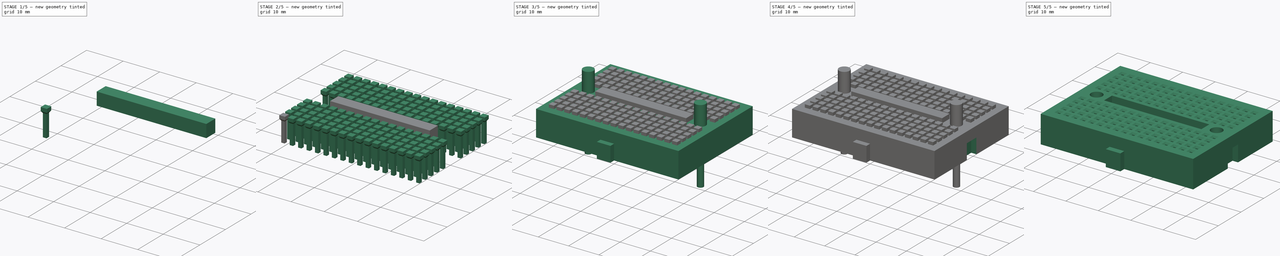
[diagram: build sequence overview — one tinted view per stage of 5, left to right]
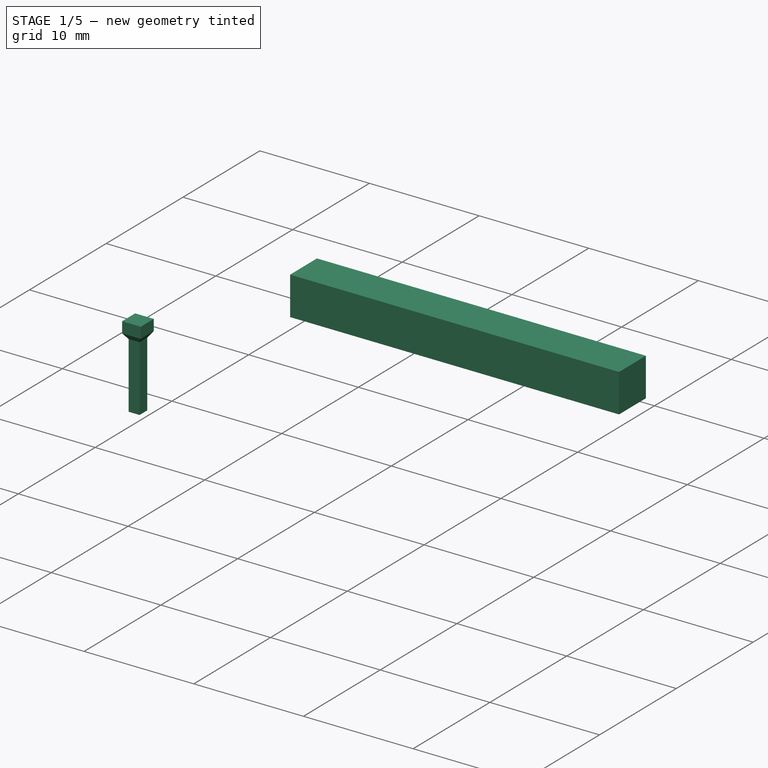
[diagram: stage 1 of 5 — iso view after this stage's code; geometry added in this stage tinted green]
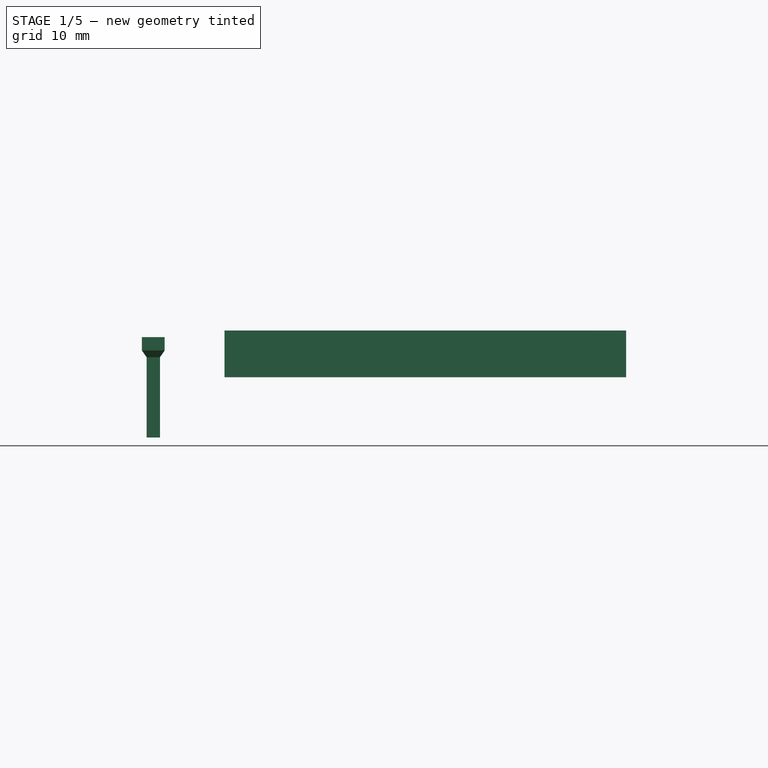
[diagram: stage 1 of 5 — front view after this stage's code; geometry added in this stage tinted green]
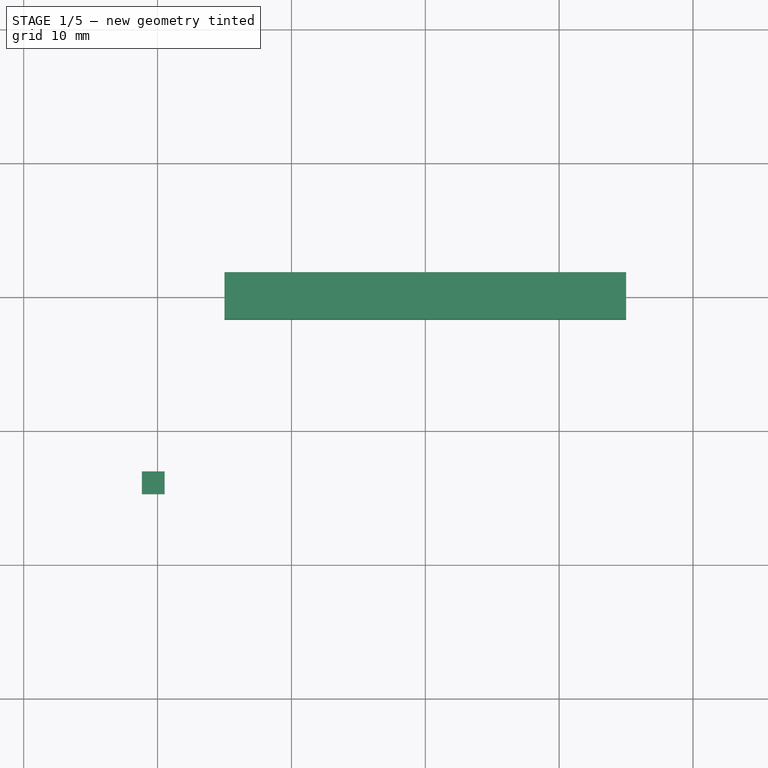
[diagram: stage 1 of 5 — top view after this stage's code; geometry added in this stage tinted green]
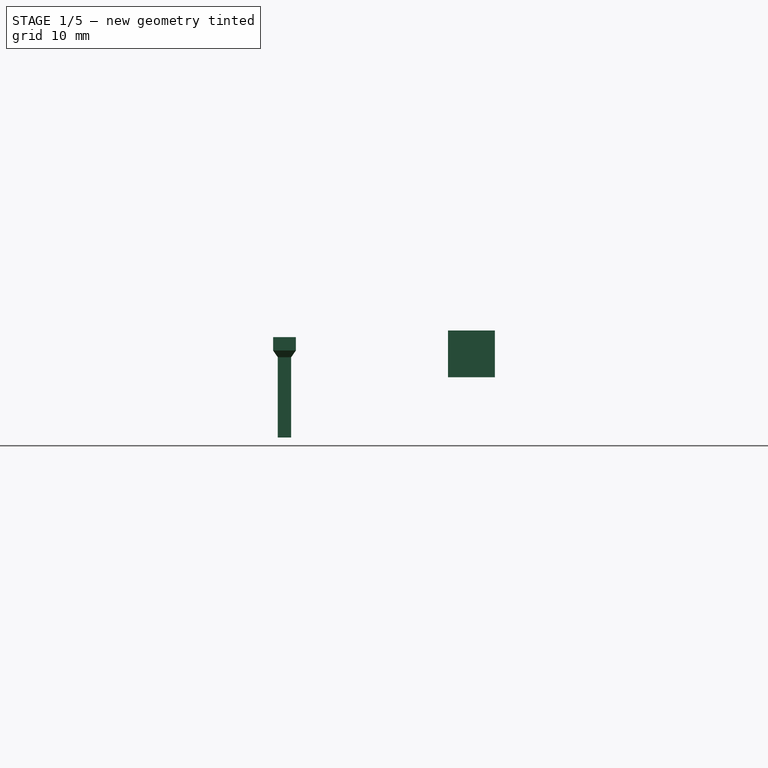
[diagram: stage 1 of 5 — right view after this stage's code; geometry added in this stage tinted green]
FCSTD DOCUMENT  (FreeCAD 0.16R6706 (Git))
Label: Mini_breadboard_170_holes
License: All rights reserved
LicenseURL: http://en.wikipedia.org/wiki/All_rights_reserved
objects: Sketcher::SketchObject×10, PartDesign::Pad×7, Part::Cut×5, Part::Fuse×3, Part::Feature×2, Part::Loft×1, Part::FeaturePython×1, Part::Mirroring×1
note: 37 computed .brp shape members not serialized (recipe doc carries the construction recipe); baked Part::Feature solids carry a one-line shape summary decoded from their .brp

FEATURE [Sketcher::SketchObject] Sketch005  label="Sketch_pin_bas"
  Placement = pos=(0,0,2) rot=(0,0,1;0rad)
  sketch-geometry (9):
    g0: LineSegment StartX=-20.82 StartY=-14.47 StartZ=0 EndX=-19.82 EndY=-14.47 EndZ=0
    g1: LineSegment StartX=-19.82 StartY=-14.47 StartZ=0 EndX=-19.82 EndY=-13.47 EndZ=0
    g2: LineSegment StartX=-19.82 StartY=-13.47 StartZ=0 EndX=-20.82 EndY=-13.47 EndZ=0
    g3: LineSegment StartX=-20.82 StartY=-13.47 StartZ=0 EndX=-20.82 EndY=-14.47 EndZ=0
    g4: LineSegment [constr] StartX=-20.32 StartY=-13.97 StartZ=0 EndX=-20.32 EndY=-14.47 EndZ=0
    g5: LineSegment [constr] StartX=-20.32 StartY=-13.97 StartZ=0 EndX=-20.32 EndY=0 EndZ=0
    g6: LineSegment [constr] StartX=-20.32 StartY=-13.97 StartZ=0 EndX=0 EndY=-13.97 EndZ=0
    g7: LineSegment [constr] StartX=-20.82 StartY=-13.97 StartZ=0 EndX=-20.32 EndY=-13.97 EndZ=0
    g8: LineSegment [constr] StartX=-20.32 StartY=-13.97 StartZ=0 EndX=-20.32 EndY=-14.47 EndZ=0
  constraints (28):
    c: Coincident(g0,g1)
    c: Coincident(g1,g2)
    c: Coincident(g2,g3)
    c: Coincident(g3,g0)
    c: Horizontal(g0)
    c: Horizontal(g2)
    c: Vertical(g1)
    c: Vertical(g3)
    c: Equal(g0,g3)
    c: Distance(g0) = 1
    c: PointOnObject(g4,g0)
    c: Vertical(g4)
    c: PointOnObject(g5,g-1)
    c: Vertical(g5)
    c: Coincident(g4,g5)
    c: Coincident(g6,g4)
    c: PointOnObject(g6,g-2)
    c: Horizontal(g6)
    c: Distance(g6) = 20.32
    c: PointOnObject(g7,g3)
    c: Horizontal(g7)
    c: Coincident(g8,g7)
    c: PointOnObject(g8,g0)
    c: Vertical(g8)
    c: Distance(g7) = 0.5
    c: Equal(g7,g8)
    c: Coincident(g7,g4)
    c: Distance(g5) = 13.97
FEATURE [Sketcher::SketchObject] Sketch006  label="Sketch_pin_milieu"
  Placement = pos=(0,0,8) rot=(0,0,1;0rad)
  sketch-geometry (8):
    g0: LineSegment StartX=-20.82 StartY=-13.47 StartZ=0 EndX=-19.82 EndY=-13.47 EndZ=0
    g1: LineSegment StartX=-19.82 StartY=-13.47 StartZ=0 EndX=-19.82 EndY=-14.47 EndZ=0
    g2: LineSegment StartX=-19.82 StartY=-14.47 StartZ=0 EndX=-20.82 EndY=-14.47 EndZ=0
    g3: LineSegment StartX=-20.82 StartY=-14.47 StartZ=0 EndX=-20.82 EndY=-13.47 EndZ=0
    g4: LineSegment [constr] StartX=-20.82 StartY=-13.97 StartZ=0 EndX=-20.32 EndY=-13.97 EndZ=0
    g5: LineSegment [constr] StartX=-20.32 StartY=-13.97 StartZ=0 EndX=-20.32 EndY=-14.47 EndZ=0
    g6: LineSegment [constr] StartX=-20.32 StartY=-13.97 StartZ=0 EndX=-20.32 EndY=0 EndZ=0
    g7: LineSegment [constr] StartX=-20.32 StartY=-13.97 StartZ=0 EndX=0 EndY=-13.97 EndZ=0
  constraints (25):
    c: Coincident(g0,g1)
    c: Coincident(g1,g2)
    c: Coincident(g2,g3)
    c: Coincident(g3,g0)
    c: Horizontal(g0)
    c: Horizontal(g2)
    c: Vertical(g1)
    c: Vertical(g3)
    c: Equal(g0,g1)
    c: Distance(g0) = 1
    c: PointOnObject(g4,g3)
    c: Coincident(g4,g5)
    c: PointOnObject(g5,g2)
    c: Vertical(g5)
    c: Horizontal(g4)
    c: Distance(g4) = 0.5
    c: Equal(g4,g5)
    c: Coincident(g6,g4)
    c: PointOnObject(g6,g-1)
    c: Vertical(g6)
    c: Distance(g6) = 13.97
    c: Coincident(g7,g4)
    c: PointOnObject(g7,g-2)
    c: Horizontal(g7)
    c: Distance(g7) = 20.32
FEATURE [Sketcher::SketchObject] Sketch007  label="Sketch_pin_surface"
  Placement = pos=(0,0,8.5) rot=(0,0,1;0rad)
  sketch-geometry (8):
    g0: LineSegment StartX=-21.17 StartY=-13.12 StartZ=0 EndX=-19.47 EndY=-13.12 EndZ=0
    g1: LineSegment StartX=-19.47 StartY=-13.12 StartZ=0 EndX=-19.47 EndY=-14.82 EndZ=0
    g2: LineSegment StartX=-19.47 StartY=-14.82 StartZ=0 EndX=-21.17 EndY=-14.82 EndZ=0
    g3: LineSegment StartX=-21.17 StartY=-14.82 StartZ=0 EndX=-21.17 EndY=-13.12 EndZ=0
    g4: LineSegment [constr] StartX=-21.17 StartY=-13.97 StartZ=0 EndX=-20.32 EndY=-13.97 EndZ=0
    g5: LineSegment [constr] StartX=-20.32 StartY=-13.97 StartZ=0 EndX=-20.32 EndY=-14.82 EndZ=0
    g6: LineSegment [constr] StartX=-20.32 StartY=-13.97 StartZ=0 EndX=-20.32 EndY=0 EndZ=0
    g7: LineSegment [constr] StartX=-20.32 StartY=-13.97 StartZ=0 EndX=0 EndY=-13.97 EndZ=0
  constraints (25):
    c: Coincident(g0,g1)
    c: Coincident(g1,g2)
    c: Coincident(g2,g3)
    c: Coincident(g3,g0)
    c: Horizontal(g0)
    c: Horizontal(g2)
    c: Vertical(g1)
    c: Vertical(g3)
    c: Distance(g0) = 1.7
    c: Equal(g0,g1)
    c: PointOnObject(g4,g3)
    c: Horizontal(g4)
    c: Coincident(g5,g4)
    c: PointOnObject(g5,g2)
    c: Vertical(g5)
    c: Equal(g4,g5)
    c: Distance(g4) = 0.85
    c: PointOnObject(g6,g-1)
    c: Vertical(g6)
    c: Coincident(g7,g4)
    c: PointOnObject(g7,g-2)
    c: Horizontal(g7)
    c: Coincident(g6,g4)
    c: Distance(g6) = 13.97
    c: Distance(g7) = 20.32
FEATURE [Part::Loft] Loft
  Closed = false
  Ruled = true
  Sections = -> [Sketch005,Sketch006,Sketch007]
  Solid = true
FEATURE [Sketcher::SketchObject] Sketch008  label="Sketch_pin_haut"
  Placement = pos=(0,0,8.5) rot=(0,0,1;0rad)
  sketch-geometry (8):
    g0: LineSegment StartX=-21.17 StartY=-13.12 StartZ=0 EndX=-19.47 EndY=-13.12 EndZ=0
    g1: LineSegment StartX=-19.47 StartY=-13.12 StartZ=0 EndX=-19.47 EndY=-14.82 EndZ=0
    g2: LineSegment StartX=-19.47 StartY=-14.82 StartZ=0 EndX=-21.17 EndY=-14.82 EndZ=0
    g3: LineSegment StartX=-21.17 StartY=-14.82 StartZ=0 EndX=-21.17 EndY=-13.12 EndZ=0
    g4: LineSegment [constr] StartX=-21.17 StartY=-13.97 StartZ=0 EndX=-20.32 EndY=-13.97 EndZ=0
    g5: LineSegment [constr] StartX=-20.32 StartY=-13.97 StartZ=0 EndX=-20.32 EndY=-14.82 EndZ=0
    g6: LineSegment [constr] StartX=-20.32 StartY=-13.97 StartZ=0 EndX=-20.32 EndY=0 EndZ=0
    g7: LineSegment [constr] StartX=-20.32 StartY=-13.97 StartZ=0 EndX=0 EndY=-13.97 EndZ=0
  constraints (25):
    c: Coincident(g0,g1)
    c: Coincident(g1,g2)
    c: Coincident(g2,g3)
    c: Coincident(g3,g0)
    c: Horizontal(g0)
    c: Horizontal(g2)
    c: Vertical(g1)
    c: Vertical(g3)
    c: Distance(g0) = 1.7
    c: Equal(g0,g1)
    c: PointOnObject(g4,g3)
    c: Horizontal(g4)
    c: Coincident(g4,g5)
    c: PointOnObject(g5,g2)
    c: Vertical(g5)
    c: Equal(g4,g5)
    c: Distance(g4) = 0.85
    c: Coincident(g6,g4)
    c: PointOnObject(g6,g-1)
    c: Vertical(g6)
    c: Coincident(g7,g4)
    c: PointOnObject(g7,g-2)
    c: Horizontal(g7)
    c: Distance(g6) = 13.97
    c: Distance(g7) = 20.32
FEATURE [PartDesign::Pad] Pad005  label="Pad_pin_haut"
  Length = 1
  Length2 = 100
  Placement = pos=(0,0,8.5) rot=(0,0,1;0rad)
  Sketch = -> Sketch008
  Type = 0
FEATURE [Part::Fuse] Fusion001  label="Fusion_pin"
  Base = -> Loft
  Tool = -> Pad005
FEATURE [Sketcher::SketchObject] Sketch009  label="Sketch_rainure"
  Placement = pos=(0,0,10) rot=(0,0,1;0rad)
  sketch-geometry (4):
    g0: LineSegment StartX=-15 StartY=1.75 StartZ=0 EndX=15 EndY=1.75 EndZ=0
    g1: LineSegment StartX=15 StartY=1.75 StartZ=0 EndX=15 EndY=-1.75 EndZ=0
    g2: LineSegment StartX=15 StartY=-1.75 StartZ=0 EndX=-15 EndY=-1.75 EndZ=0
    g3: LineSegment StartX=-15 StartY=-1.75 StartZ=0 EndX=-15 EndY=1.75 EndZ=0
  constraints (12):
    c: Coincident(g0,g1)
    c: Coincident(g1,g2)
    c: Coincident(g2,g3)
    c: Coincident(g3,g0)
    c: Horizontal(g0)
    c: Horizontal(g2)
    c: Vertical(g1)
    c: Vertical(g3)
    c: Distance(g0) = 30
    c: Distance(g3) = 3.5
    c: Symmetric(g0,g2,g-1)
    c: Symmetric(g0,g0,g-2)
FEATURE [PartDesign::Pad] Pad006  label="Pad_rainure"
  Length = 3.5
  Length2 = 100
  Placement = pos=(0,0,10) rot=(0,0,1;0rad)
  Reversed = true
  Sketch = -> Sketch009
  Type = 0
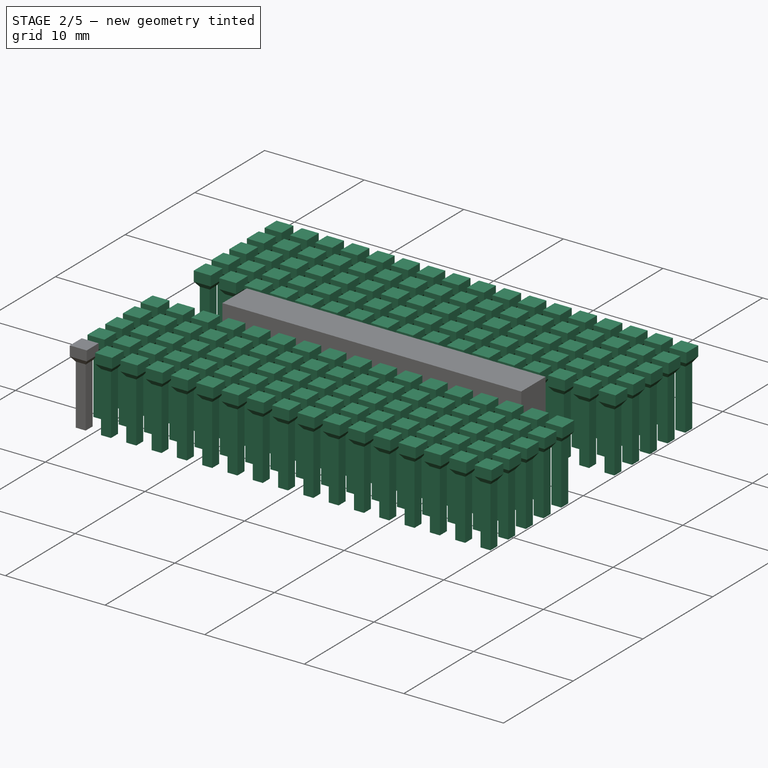
[diagram: stage 2 of 5 — iso view after this stage's code; geometry added in this stage tinted green]
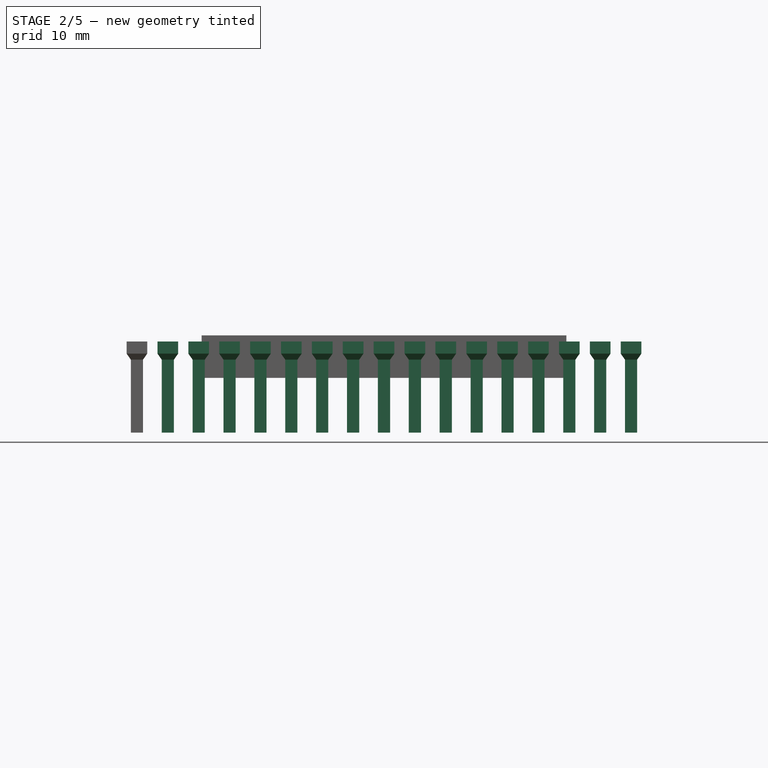
[diagram: stage 2 of 5 — front view after this stage's code; geometry added in this stage tinted green]
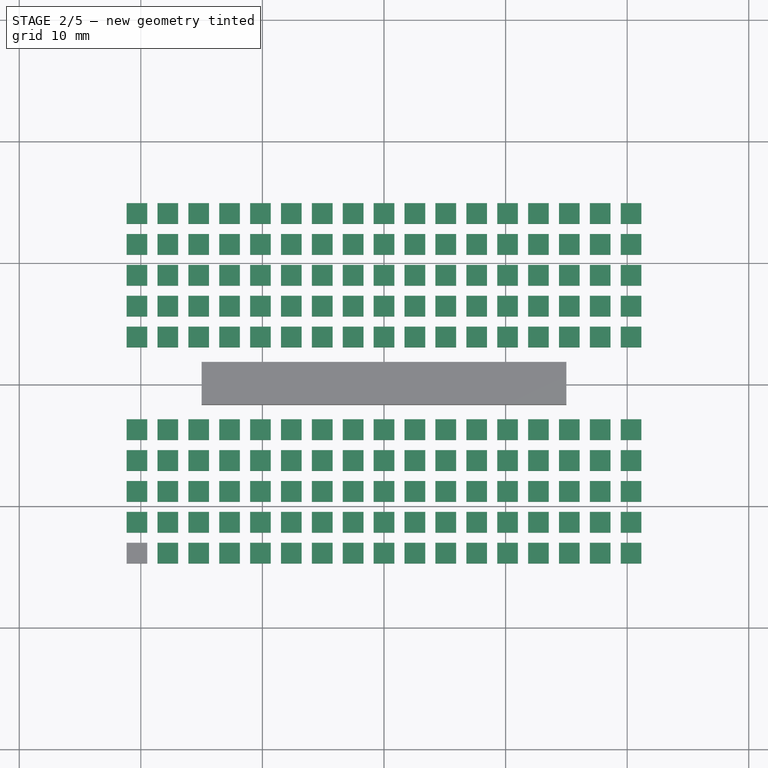
[diagram: stage 2 of 5 — top view after this stage's code; geometry added in this stage tinted green]
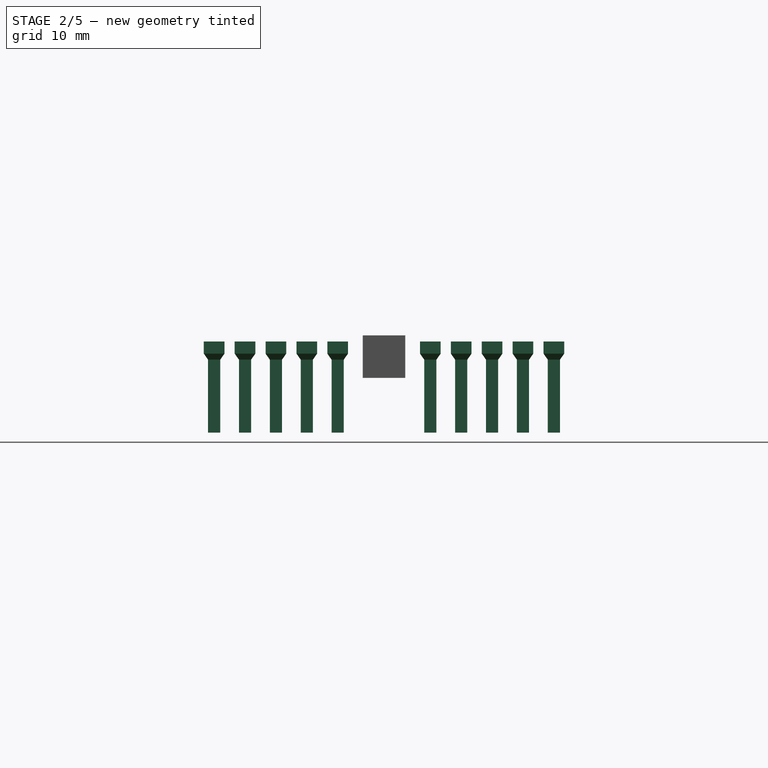
[diagram: stage 2 of 5 — right view after this stage's code; geometry added in this stage tinted green]
FEATURE [Part::Feature] Fusion001001  label="Fusion_pin001"
  shape: bbox 1.7 x 1.7 x 7.5 mm, 14 faces (baked)
FEATURE [Part::FeaturePython] Array  label="Array_pins"  # Draft array (typed FeaturePython)
  Angle = 360
  ArrayType = 0
  Axis = (0,0,1)
  Base = -> Fusion001
  Center = (0,0,0)
  Fuse = false
  IntervalAxis = (0,0,0)
  IntervalX = (2.54,0,0)
  IntervalY = (0,2.54,0)
  IntervalZ = (0,0,0)
  NumberPolar = 1
  NumberX = 17
  NumberY = 5
  NumberZ = 1
FEATURE [Part::Mirroring] Part__Mirroring  label="Array_pins (Mirror #1)"
  Base = (0,0,0)
  Normal = (0,1,0)
  Source = -> Array
FEATURE [Part::Fuse] Fusion001002  label="Fusion_pins"
  Base = -> Array
  Tool = -> Part__Mirroring
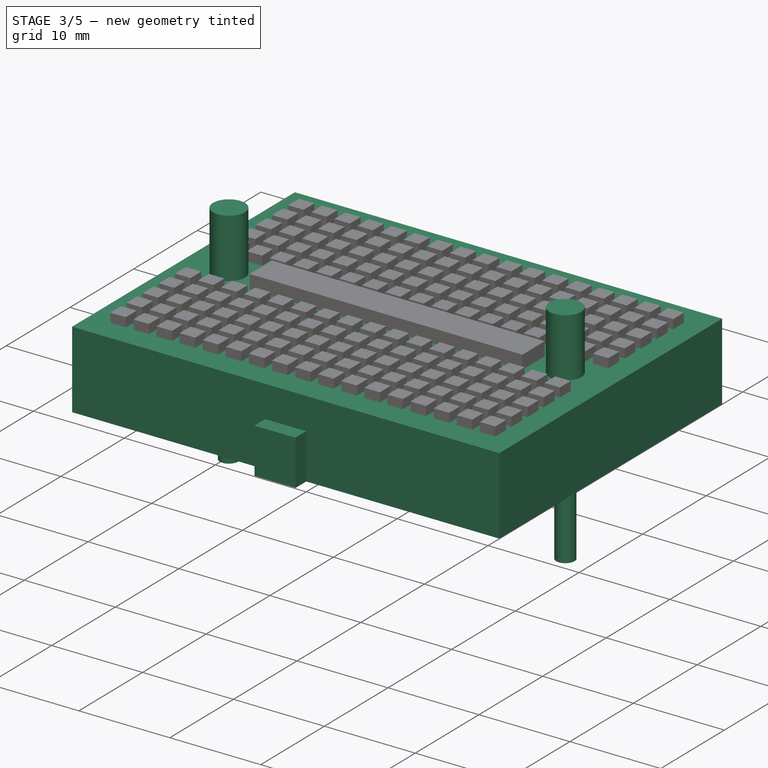
[diagram: stage 3 of 5 — iso view after this stage's code; geometry added in this stage tinted green]
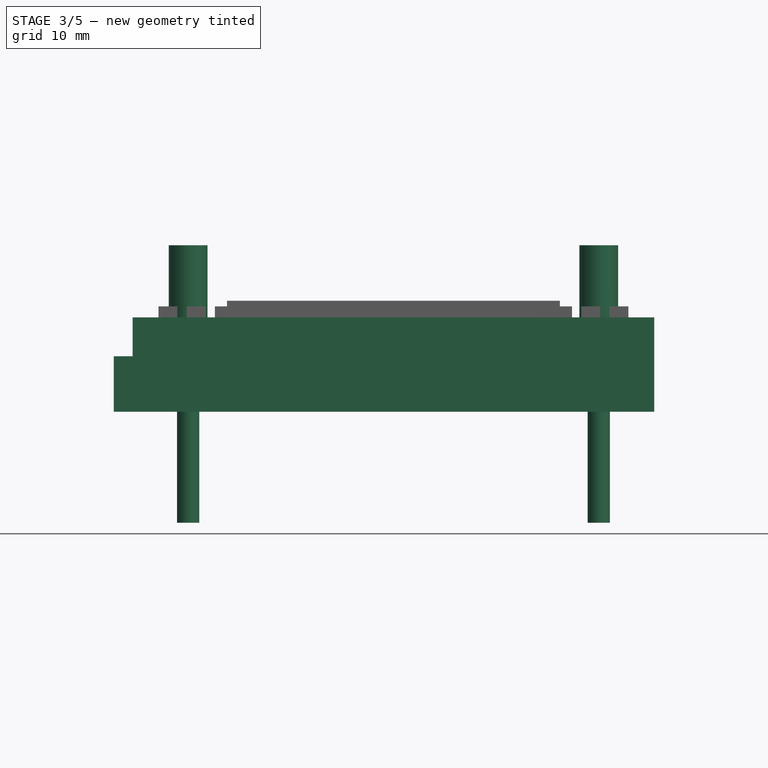
[diagram: stage 3 of 5 — front view after this stage's code; geometry added in this stage tinted green]
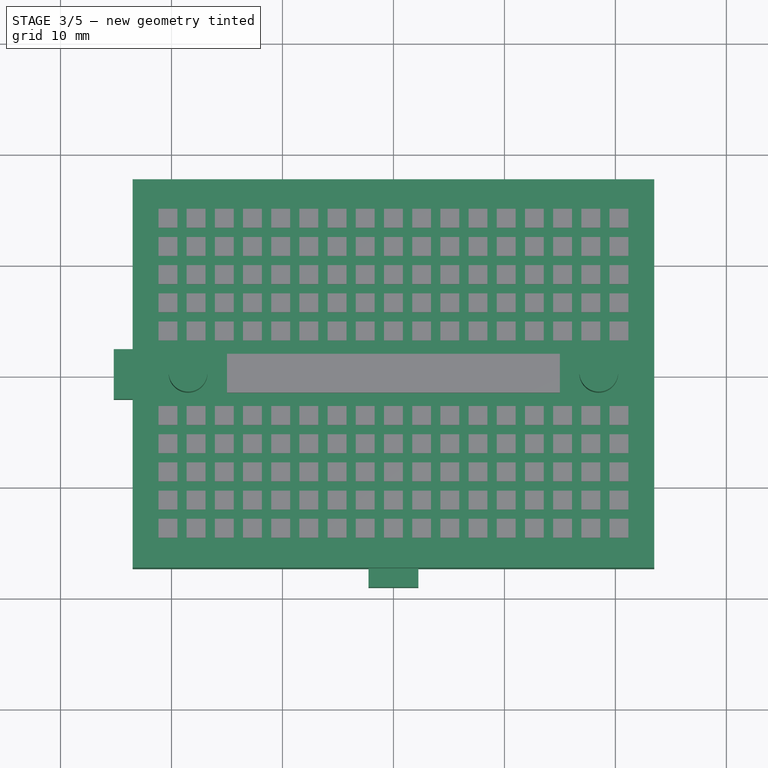
[diagram: stage 3 of 5 — top view after this stage's code; geometry added in this stage tinted green]
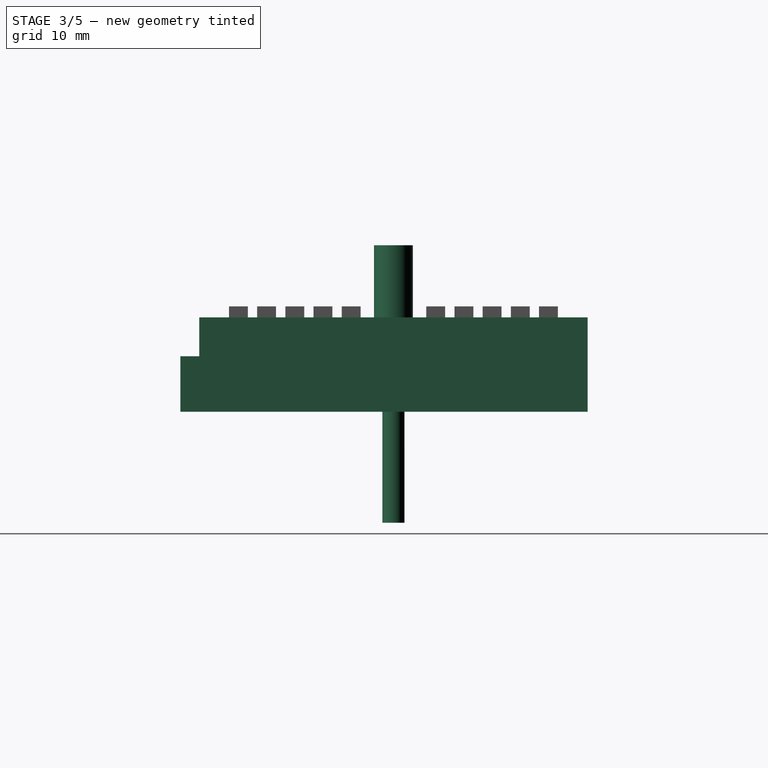
[diagram: stage 3 of 5 — right view after this stage's code; geometry added in this stage tinted green]
FEATURE [Sketcher::SketchObject] Sketch  label="Sketch_base"
  sketch-geometry (4):
    g0: LineSegment StartX=-23.5 StartY=17.5 StartZ=0 EndX=23.5 EndY=17.5 EndZ=0
    g1: LineSegment StartX=23.5 StartY=17.5 StartZ=0 EndX=23.5 EndY=-17.5 EndZ=0
    g2: LineSegment StartX=23.5 StartY=-17.5 StartZ=0 EndX=-23.5 EndY=-17.5 EndZ=0
    g3: LineSegment StartX=-23.5 StartY=-17.5 StartZ=0 EndX=-23.5 EndY=17.5 EndZ=0
  constraints (12):
    c: Coincident(g0,g1)
    c: Coincident(g1,g2)
    c: Coincident(g2,g3)
    c: Coincident(g3,g0)
    c: Horizontal(g0)
    c: Horizontal(g2)
    c: Vertical(g1)
    c: Vertical(g3)
    c: Symmetric(g0,g0,g-2)
    c: Symmetric(g2,g0,g-1)
    c: Distance(g0) = 47
    c: Distance(g3) = 35
FEATURE [PartDesign::Pad] Pad  label="Pad_base"
  Length = 8.5
  Length2 = 100
  Sketch = -> Sketch
  Type = 0
FEATURE [Sketcher::SketchObject] Sketch001  label="Sketch_bosses"
  sketch-geometry (8):
    g0: LineSegment StartX=-2.25 StartY=-19.2 StartZ=0 EndX=2.25 EndY=-19.2 EndZ=0
    g1: LineSegment StartX=2.25 StartY=-19.2 StartZ=0 EndX=2.25 EndY=-17.5 EndZ=0
    g2: LineSegment StartX=2.25 StartY=-17.5 StartZ=0 EndX=-2.25 EndY=-17.5 EndZ=0
    g3: LineSegment StartX=-2.25 StartY=-17.5 StartZ=0 EndX=-2.25 EndY=-19.2 EndZ=0
    g4: LineSegment StartX=-25.2 StartY=2.25 StartZ=0 EndX=-23.5 EndY=2.25 EndZ=0
    g5: LineSegment StartX=-23.5 StartY=2.25 StartZ=0 EndX=-23.5 EndY=-2.25 EndZ=0
    g6: LineSegment StartX=-23.5 StartY=-2.25 StartZ=0 EndX=-25.2 EndY=-2.25 EndZ=0
    g7: LineSegment StartX=-25.2 StartY=-2.25 StartZ=0 EndX=-25.2 EndY=2.25 EndZ=0
  constraints (24):
    c: Coincident(g0,g1)
    c: Coincident(g1,g2)
    c: Coincident(g2,g3)
    c: Coincident(g3,g0)
    c: Horizontal(g0)
    c: Horizontal(g2)
    c: Vertical(g1)
    c: Vertical(g3)
    c: Coincident(g4,g5)
    c: Coincident(g5,g6)
    c: Coincident(g6,g7)
    c: Coincident(g7,g4)
    c: Horizontal(g4)
    c: Horizontal(g6)
    c: Vertical(g5)
    c: Vertical(g7)
    c: Distance(g4) = 1.7
    c: Distance(g5) = 4.5
    c: Distance(g0) = 4.5
    c: Distance(g3) = 1.7
    c: Symmetric(g0,g0,g-2)
    c: DistanceY(g-1,g2) = -17.5
    c: DistanceX(g-2,g5) = -23.5
    c: Symmetric(g4,g6,g-1)
FEATURE [PartDesign::Pad] Pad001  label="Pad_bosses"
  Length = 5
  Length2 = 100
  Sketch = -> Sketch001
  Type = 0
FEATURE [Sketcher::SketchObject] Sketch003  label="Sketch_M2_holes"
  sketch-geometry (3):
    g0: Circle CenterX=-18.5 CenterY=0 CenterZ=0 NormalX=0 NormalY=0 NormalZ=1 Radius=1
    g1: Circle CenterX=18.5 CenterY=0 CenterZ=0 NormalX=0 NormalY=0 NormalZ=1 Radius=1
    g2: LineSegment [constr] StartX=-18.5 StartY=0 StartZ=0 EndX=18.5 EndY=0 EndZ=0
  constraints (8):
    c: PointOnObject(g0,g-1)
    c: PointOnObject(g1,g-1)
    c: Radius(g1) = 1
    c: Radius(g0) = 1
    c: Coincident(g2,g0)
    c: Coincident(g2,g1)
    c: Distance(g2) = 37
    c: Symmetric(g0,g1,g-2)
FEATURE [PartDesign::Pad] Pad003  label="Pad_M2_holes"
  Length = 20
  Length2 = 100
  Midplane = true
  Sketch = -> Sketch003
  Type = 0
FEATURE [Sketcher::SketchObject] Sketch004  label="Sketch_holes_high"
  Placement = pos=(0,0,5) rot=(0,0,1;0rad)
  sketch-geometry (3):
    g0: Circle CenterX=-18.5 CenterY=0 CenterZ=0 NormalX=0 NormalY=0 NormalZ=1 Radius=1.75
    g1: Circle CenterX=18.5 CenterY=0 CenterZ=0 NormalX=0 NormalY=0 NormalZ=1 Radius=1.75
    g2: LineSegment [constr] StartX=-18.5 StartY=0 StartZ=0 EndX=18.5 EndY=0 EndZ=0
  constraints (8):
    c: PointOnObject(g0,g-1)
    c: Radius(g0) = 1.75
    c: PointOnObject(g1,g-1)
    c: Radius(g1) = 1.75
    c: Coincident(g2,g0)
    c: Coincident(g2,g1)
    c: Distance(g2) = 37
    c: Symmetric(g0,g1,g-2)
FEATURE [PartDesign::Pad] Pad004  label="Pad_holes_high"
  Length = 10
  Length2 = 100
  Placement = pos=(0,0,5) rot=(0,0,1;0rad)
  Sketch = -> Sketch004
  Type = 0
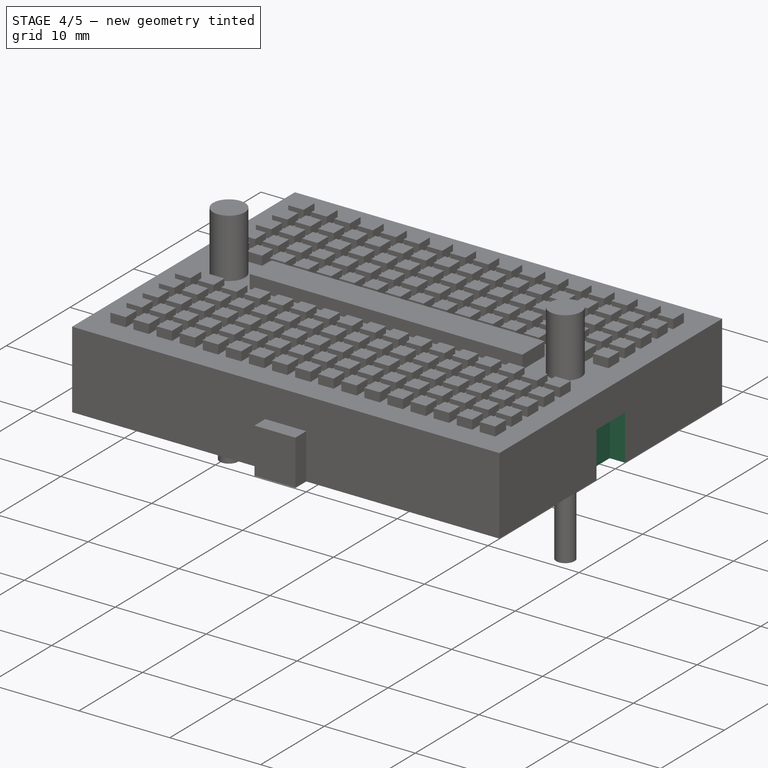
[diagram: stage 4 of 5 — iso view after this stage's code; geometry added in this stage tinted green]
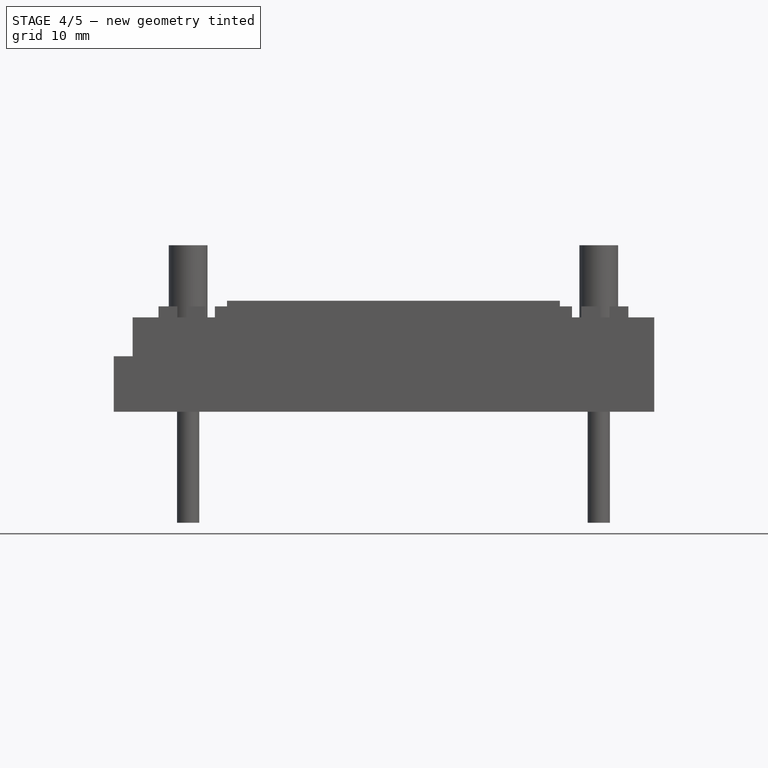
[diagram: stage 4 of 5 — front view after this stage's code; geometry added in this stage tinted green]
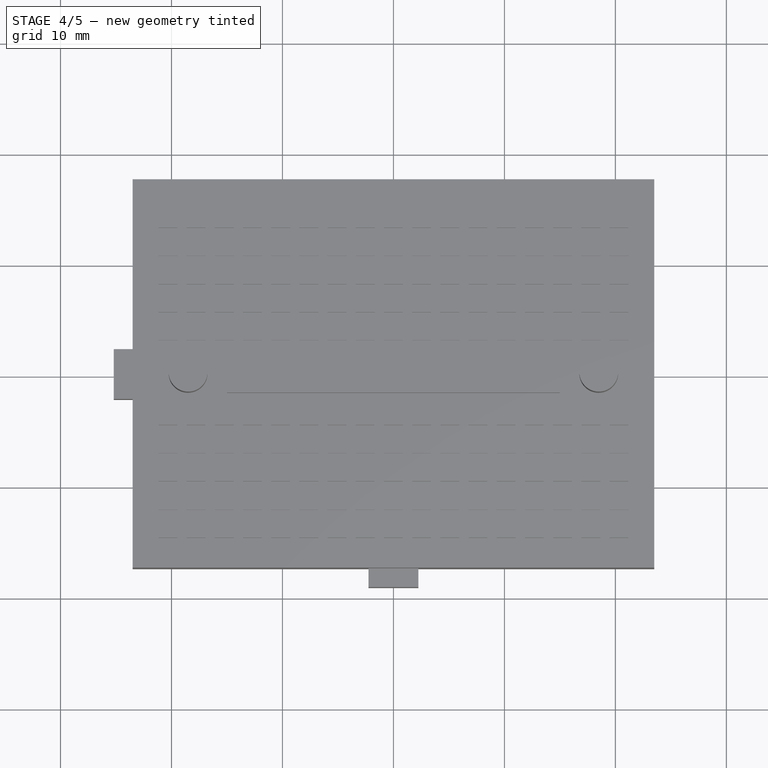
[diagram: stage 4 of 5 — top view after this stage's code; geometry added in this stage tinted green]
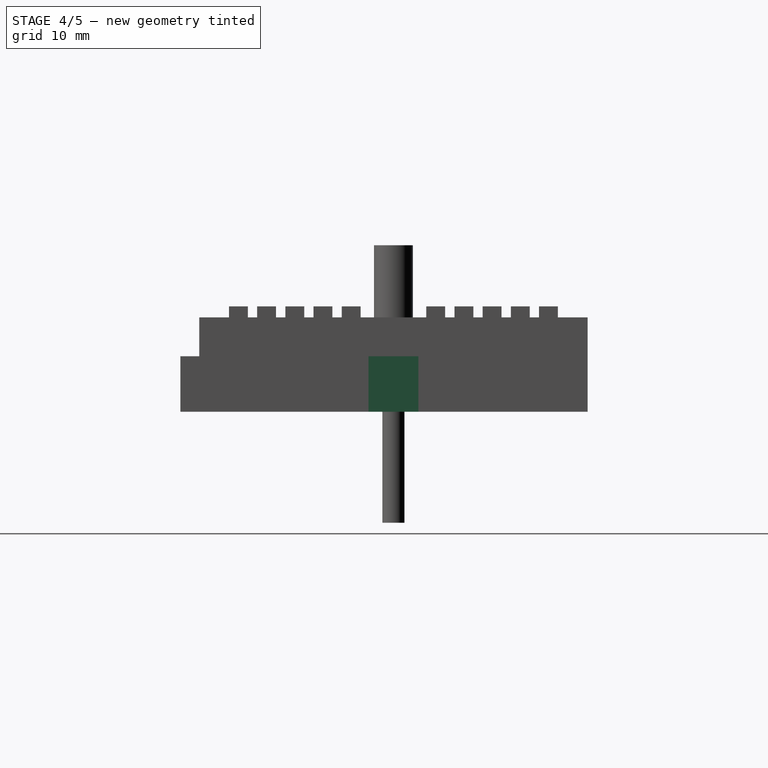
[diagram: stage 4 of 5 — right view after this stage's code; geometry added in this stage tinted green]
FEATURE [Sketcher::SketchObject] Sketch002  label="Sketch_creux"
  sketch-geometry (14):
    g0: LineSegment StartX=21.8 StartY=2.25 StartZ=0 EndX=23.5 EndY=2.25 EndZ=0
    g1: LineSegment [constr] StartX=23.5 StartY=2.25 StartZ=0 EndX=23.5 EndY=-2.25 EndZ=0
    g2: LineSegment StartX=23.5 StartY=-2.25 StartZ=0 EndX=21.8 EndY=-2.25 EndZ=0
    g3: LineSegment StartX=21.8 StartY=-2.25 StartZ=0 EndX=21.8 EndY=2.25 EndZ=0
    g4: LineSegment [constr] StartX=-2.25 StartY=17.5 StartZ=0 EndX=2.25 EndY=17.5 EndZ=0
    g5: LineSegment StartX=2.25 StartY=17.5 StartZ=0 EndX=2.25 EndY=15.8 EndZ=0
    g6: LineSegment StartX=2.25 StartY=15.8 StartZ=0 EndX=-2.25 EndY=15.8 EndZ=0
    g7: LineSegment StartX=-2.25 StartY=15.8 StartZ=0 EndX=-2.25 EndY=17.5 EndZ=0
    g8: LineSegment StartX=-2.25 StartY=17.5 StartZ=0 EndX=-2.25 EndY=19.5 EndZ=0
    g9: LineSegment StartX=-2.25 StartY=19.5 StartZ=0 EndX=2.25 EndY=19.5 EndZ=0
    g10: LineSegment StartX=2.25 StartY=19.5 StartZ=0 EndX=2.25 EndY=17.5 EndZ=0
    g11: LineSegment StartX=23.5 StartY=2.25 StartZ=0 EndX=25.5 EndY=2.25 EndZ=0
    g12: LineSegment StartX=25.5 StartY=2.25 StartZ=0 EndX=25.5 EndY=-2.25 EndZ=0
    g13: LineSegment StartX=25.5 StartY=-2.25 StartZ=0 EndX=23.5 EndY=-2.25 EndZ=0
  constraints (40):
    c: Coincident(g0,g1)
    c: Coincident(g1,g2)
    c: Coincident(g2,g3)
    c: Coincident(g3,g0)
    c: Horizontal(g0)
    c: Horizontal(g2)
    c: Vertical(g1)
    c: Vertical(g3)
    c: Coincident(g4,g5)
    c: Coincident(g5,g6)
    c: Coincident(g6,g7)
    c: Coincident(g7,g4)
    c: Horizontal(g4)
    c: Horizontal(g6)
    c: Vertical(g5)
    c: Vertical(g7)
    c: Equal(g7,g0)
    c: Equal(g4,g3)
    c: Distance(g7) = 1.7
    c: Distance(g4) = 4.5
    c: Symmetric(g4,g4,g-2)
    c: Symmetric(g0,g2,g-1)
    c: DistanceY(g-1,g4) = 17.5
    c: DistanceX(g-2,g0) = 23.5
    c: Coincident(g4,g8)
    c: Vertical(g8)
    c: Coincident(g8,g9)
    c: Horizontal(g9)
    c: Coincident(g9,g10)
    c: Coincident(g10,g4)
    c: Vertical(g10)
    c: Distance(g8) = 2
    c: Coincident(g0,g11)
    c: Horizontal(g11)
    c: Coincident(g11,g12)
    c: Vertical(g12)
    c: Coincident(g12,g13)
    c: Coincident(g13,g1)
    c: Horizontal(g13)
    c: Distance(g11) = 2
FEATURE [PartDesign::Pad] Pad002  label="Pad_creux"
  Length = 5
  Length2 = 100
  Sketch = -> Sketch002
  Type = 0
FEATURE [Part::Fuse] Fusion
  Base = -> Pad
  Tool = -> Pad001
FEATURE [Part::Cut] Cut  label="Cut_base"
  Base = -> Fusion
  Tool = -> Pad002
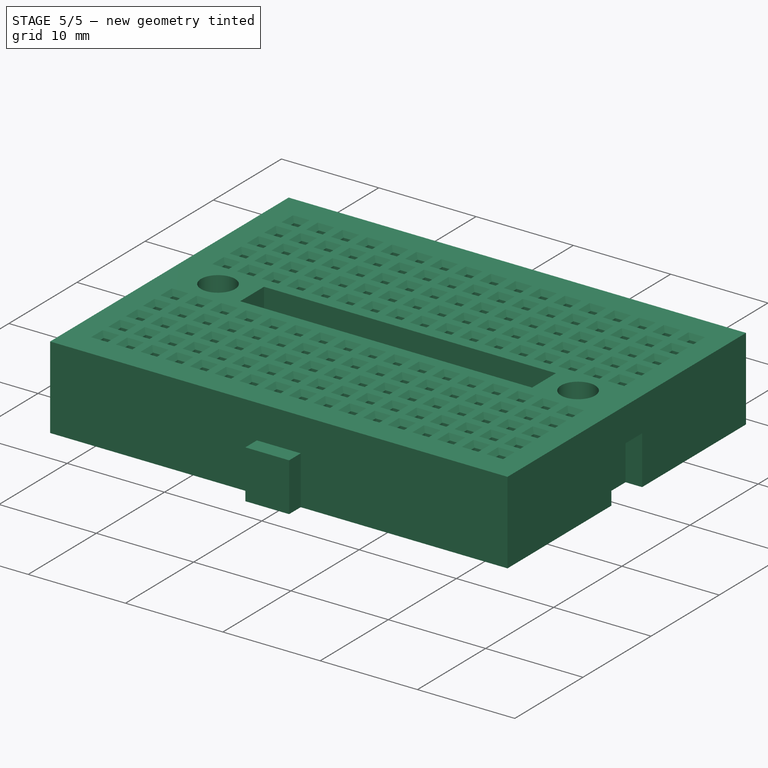
[diagram: stage 5 of 5 — iso view after this stage's code; geometry added in this stage tinted green]
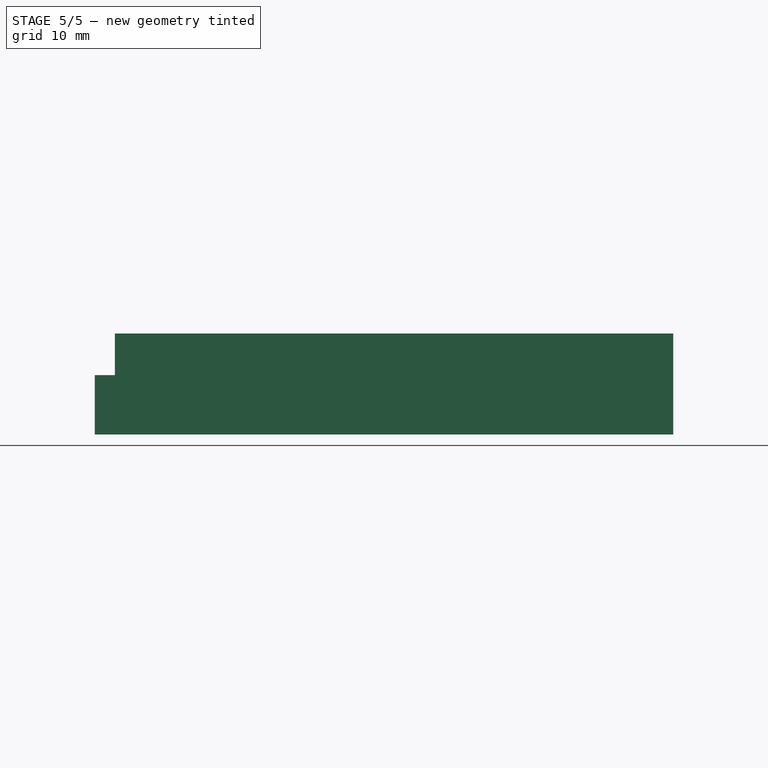
[diagram: stage 5 of 5 — front view after this stage's code; geometry added in this stage tinted green]
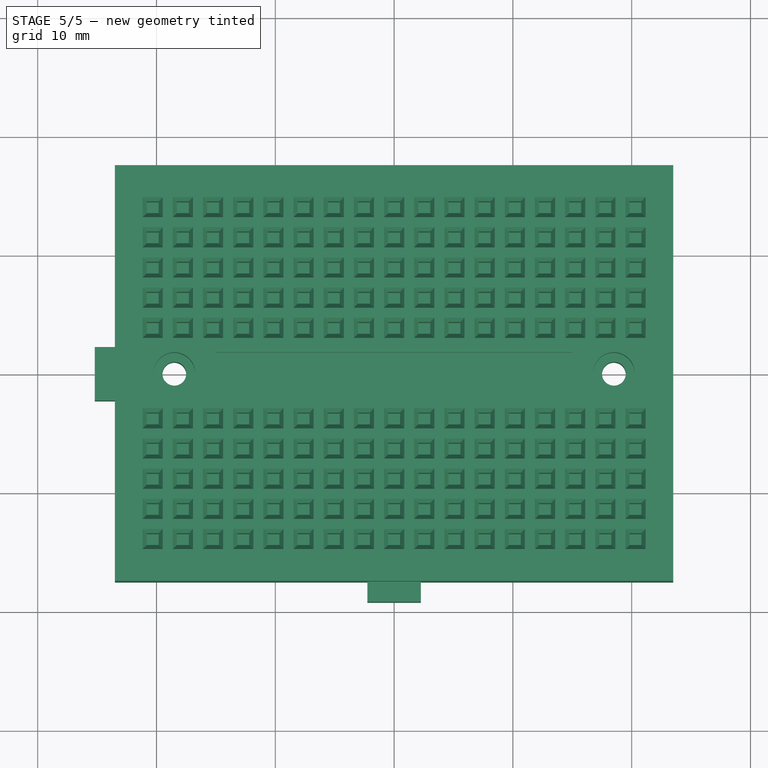
[diagram: stage 5 of 5 — top view after this stage's code; geometry added in this stage tinted green]
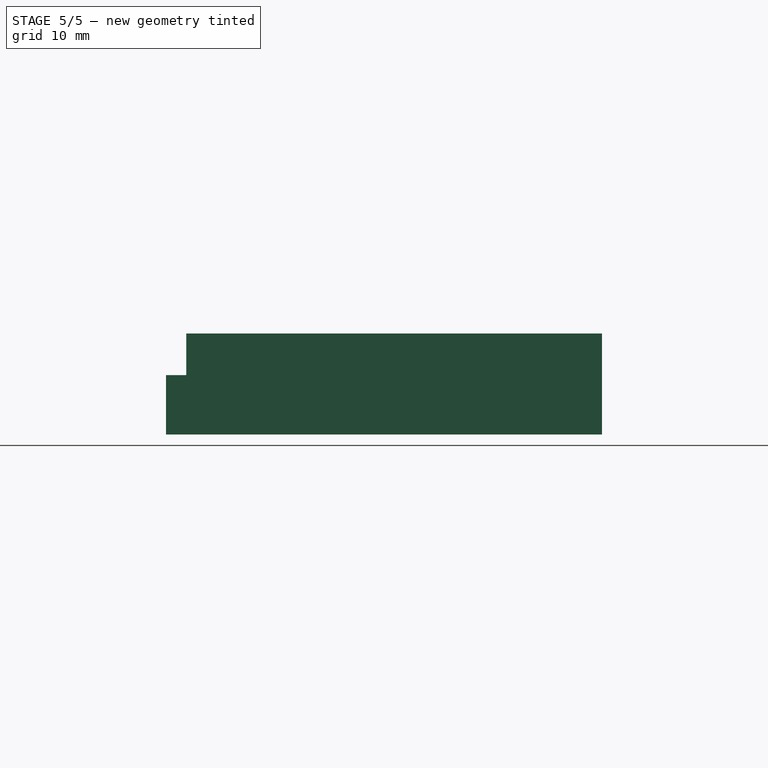
[diagram: stage 5 of 5 — right view after this stage's code; geometry added in this stage tinted green]
FEATURE [Part::Cut] Cut001
  Base = -> Cut
  Tool = -> Pad003
FEATURE [Part::Cut] Cut002
  Base = -> Cut001
  Tool = -> Pad004
FEATURE [Part::Cut] Cut003
  Base = -> Cut002
  Tool = -> Fusion001002
FEATURE [Part::Cut] Cut004  label="Cut_final"
  Base = -> Cut003
  Tool = -> Pad006
FEATURE [Part::Feature] Cut004001  label="Final"
  shape: bbox 48.7 x 36.7 x 8.5 mm, 1563 faces (baked)
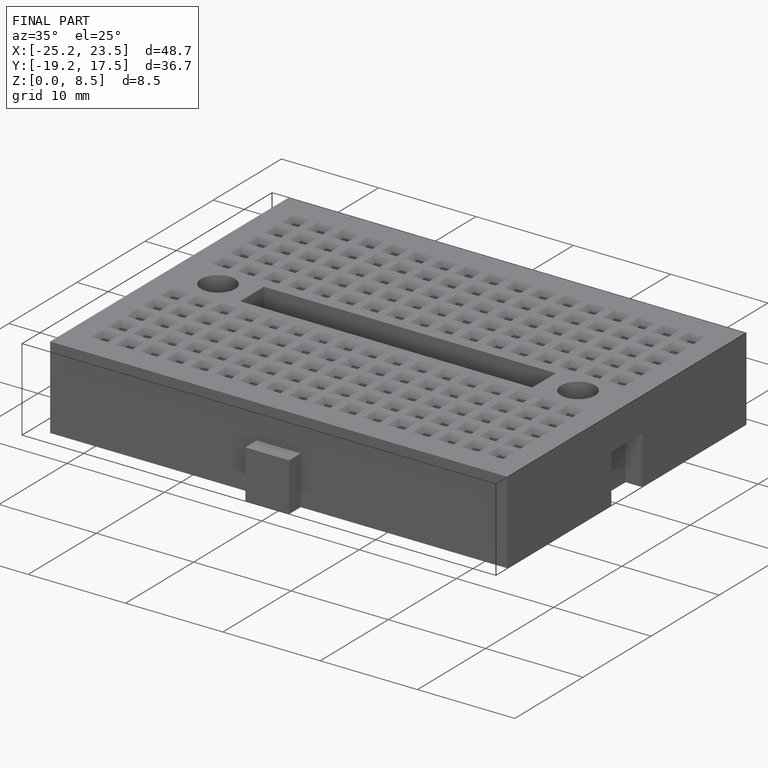
[diagram: finished part — iso view with bounding-box wireframe]
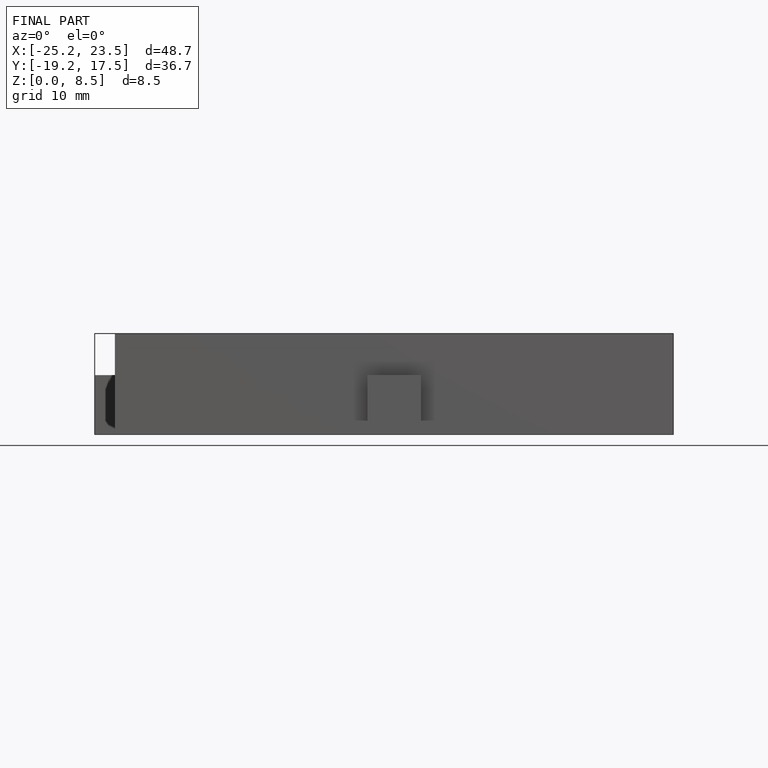
[diagram: finished part — front view with bounding-box wireframe]
